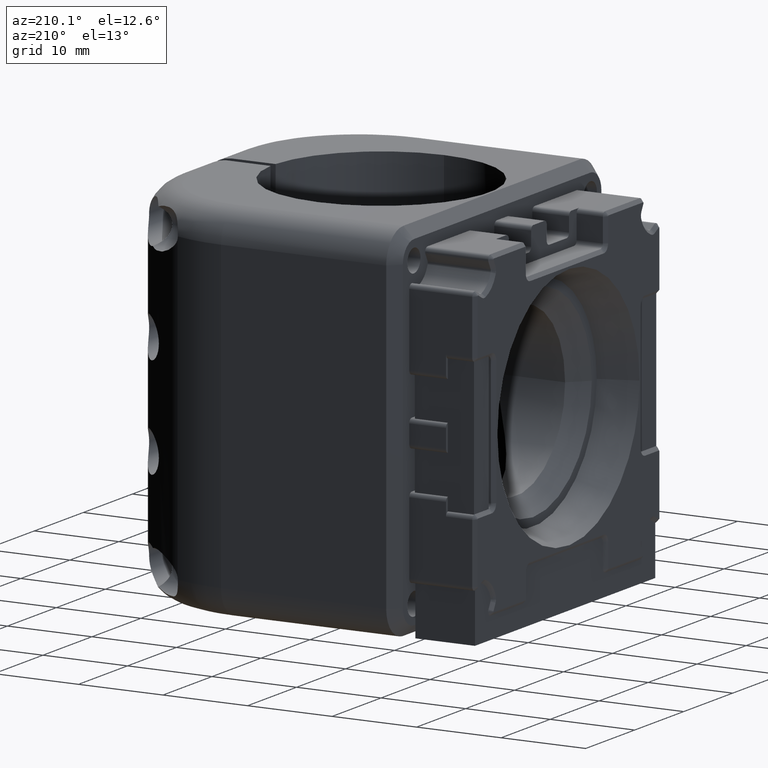
[diagram: clean part render]
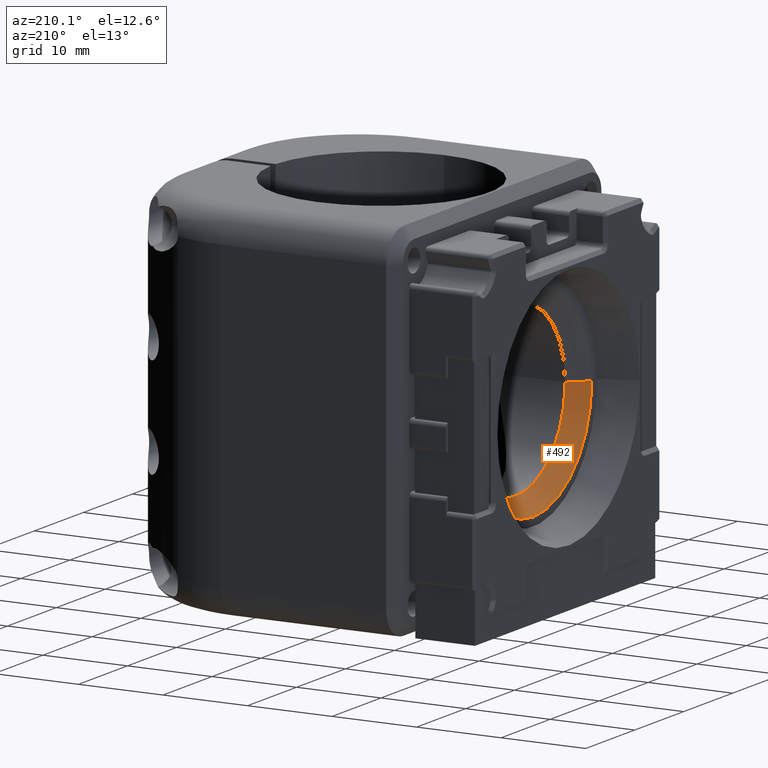
[diagram: same view with one face highlighted and labeled with its STEP entity id]
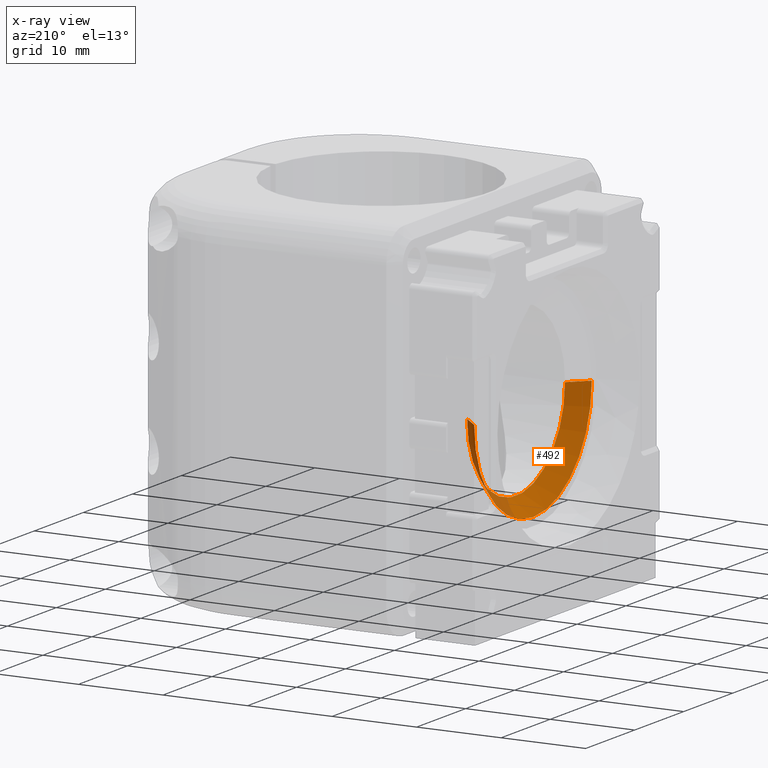
[diagram: x-ray of the same camera — body ghosted, the highlighted face saturated]
A machine part, auxiliary view. The second image highlights one B-rep face of the part: STEP entity #492.
The next image is the same camera in x-ray: the body ghosted, the highlighted face saturated — about 10% of this face is hidden behind the body in this view.
In plain terms, the highlighted conical surface has half-angle 45 deg.
Its self-contained STEP definition (entity closure, byte-faithful):
#78=CONICAL_SURFACE('',#8461,10.,0.785398163397447);
#492=ADVANCED_FACE('',(#880),#78,.F.);
#880=FACE_OUTER_BOUND('',#1300,.F.);
#1300=EDGE_LOOP('',(#2637,#2638,#2639,#2640));
#2637=ORIENTED_EDGE('',*,*,#5472,.F.);
#2638=ORIENTED_EDGE('',*,*,#5468,.F.);
#2639=ORIENTED_EDGE('',*,*,#5471,.T.);
#2640=ORIENTED_EDGE('',*,*,#5232,.T.);
#4514=CIRCLE('',#8101,12.);
#4634=CIRCLE('',#8221,10.);
#5232=EDGE_CURVE('',#7416,#7417,#4514,.T.);
#5468=EDGE_CURVE('',#7260,#7261,#4634,.T.);
#5471=EDGE_CURVE('',#7260,#7416,#6207,.T.);
#5472=EDGE_CURVE('',#7261,#7417,#6208,.T.);
#6207=LINE('',#13038,#6889);
#6208=LINE('',#13039,#6890);
#6889=VECTOR('',#9728,2.82842712474619);
#6890=VECTOR('',#9729,2.82842712474619);
#7260=VERTEX_POINT('',#10985);
#7261=VERTEX_POINT('',#10986);
#7416=VERTEX_POINT('',#11141);
#7417=VERTEX_POINT('',#11142);
#8101=AXIS2_PLACEMENT_3D('',#12411,#9398,#9399);
#8221=AXIS2_PLACEMENT_3D('',#13035,#9724,#9725);
#8461=AXIS2_PLACEMENT_3D('',#13555,#10473,#10472);
#9398=DIRECTION('',(1.,0.,0.));
#9399=DIRECTION('',(0.,-1.,0.));
#9724=DIRECTION('',(1.,0.,0.));
#9725=DIRECTION('',(0.,-1.,0.));
#9728=DIRECTION('',(-0.707106781186548,-0.707106781186547,0.));
#9729=DIRECTION('',(-0.707106781186547,0.707106781186548,0.));
#10472=DIRECTION('',(0.,-1.,0.));
#10473=DIRECTION('',(-1.,0.,0.));
#10985=CARTESIAN_POINT('',(57.2150000130991,-9.99999588116938,-1.27177215733076E-07));
#10986=CARTESIAN_POINT('',(57.2150000130991,10.0000041188306,-1.27177224305604E-07));
#11141=CARTESIAN_POINT('',(55.2150000130991,-11.9999958811694,-1.27177212932668E-07));
#11142=CARTESIAN_POINT('',(55.2150000130991,12.0000041188306,-1.27177222406571E-07));
#12411=CARTESIAN_POINT('',(55.2150000130991,4.11883062056972E-06,-1.27177220038096E-07));
#13035=CARTESIAN_POINT('',(57.2150000130991,4.11883061797774E-06,-1.27177219713178E-07));
#13038=CARTESIAN_POINT('',(57.2150000130991,-9.99999588116938,-1.27177216039238E-07));
#13039=CARTESIAN_POINT('',(57.2150000130991,10.0000041188306,-1.27177224611765E-07));
#13555=CARTESIAN_POINT('',(57.2150000130991,4.1188306197541E-06,-1.27177217735374E-07));